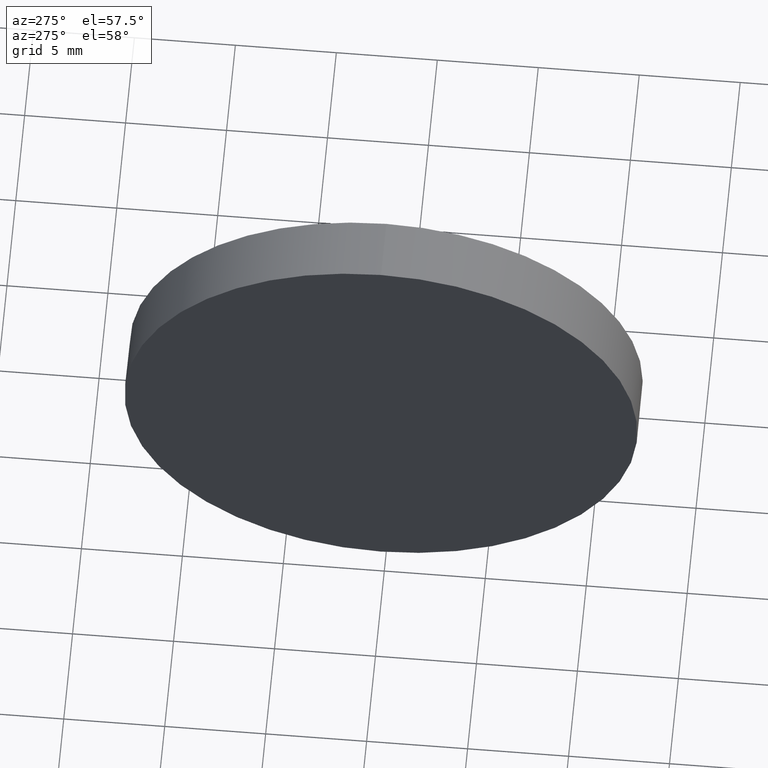
[diagram: clean part render]
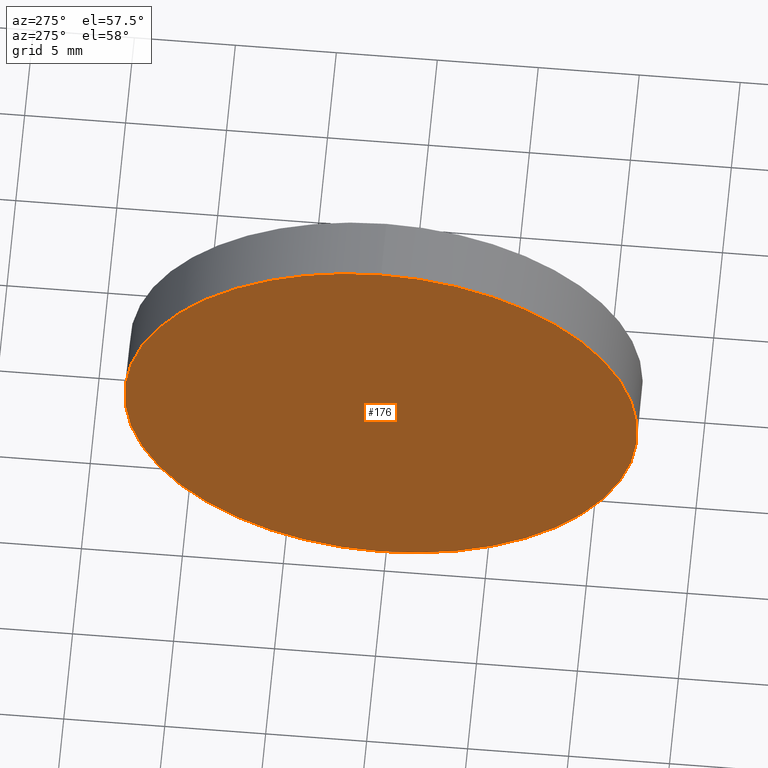
[diagram: same view with one face highlighted and labeled with its STEP entity id]
A machine part, auxiliary view. The second image highlights one B-rep face of the part: STEP entity #176.
In plain terms, the highlighted planar face has unit normal (1, 0, 0).
Its self-contained STEP definition (entity closure, byte-faithful):
#11 = CARTESIAN_POINT ( 'NONE',  ( 115.7736064308381300, 65.23355492641219700, 12.70000000000000300 ) ) ;
#18 = EDGE_CURVE ( 'NONE', #117, #150, #57, .T. ) ;
#21 = FACE_OUTER_BOUND ( 'NONE', #138, .T. ) ;
#23 = DIRECTION ( 'NONE',  ( 0.0000000000000000000, 0.0000000000000000000, 1.000000000000000000 ) ) ;
#31 = AXIS2_PLACEMENT_3D ( 'NONE', #92, #120, #36 ) ;
#36 = DIRECTION ( 'NONE',  ( 0.0000000000000000000, 0.0000000000000000000, -1.000000000000000000 ) ) ;
#37 = PLANE ( 'NONE',  #31 ) ;
#48 = DIRECTION ( 'NONE',  ( -1.000000000000000000, -0.0000000000000000000, -0.0000000000000000000 ) ) ;
#57 = CIRCLE ( 'NONE', #109, 12.70000000000000300 ) ;
#72 = CARTESIAN_POINT ( 'NONE',  ( 115.7736064308381300, 65.23355492641219700, 0.0000000000000000000 ) ) ;
#74 = DIRECTION ( 'NONE',  ( 0.0000000000000000000, 0.0000000000000000000, 1.000000000000000000 ) ) ;
#76 = DIRECTION ( 'NONE',  ( -1.000000000000000000, -0.0000000000000000000, -0.0000000000000000000 ) ) ;
#81 = CARTESIAN_POINT ( 'NONE',  ( 115.7736064308381300, 65.23355492641219700, -12.70000000000000300 ) ) ;
#92 = CARTESIAN_POINT ( 'NONE',  ( 115.7736064308381300, 65.23355492641219700, 0.0000000000000000000 ) ) ;
#109 = AXIS2_PLACEMENT_3D ( 'NONE', #72, #76, #74 ) ;
#117 = VERTEX_POINT ( 'NONE', #81 ) ;
#120 = DIRECTION ( 'NONE',  ( 1.000000000000000000, 0.0000000000000000000, 0.0000000000000000000 ) ) ;
#128 = EDGE_CURVE ( 'NONE', #150, #117, #136, .T. ) ;
#136 = CIRCLE ( 'NONE', #167, 12.70000000000000300 ) ;
#138 = EDGE_LOOP ( 'NONE', ( #166, #157 ) ) ;
#147 = CARTESIAN_POINT ( 'NONE',  ( 115.7736064308381300, 65.23355492641219700, 0.0000000000000000000 ) ) ;
#150 = VERTEX_POINT ( 'NONE', #11 ) ;
#157 = ORIENTED_EDGE ( 'NONE', *, *, #18, .T. ) ;
#166 = ORIENTED_EDGE ( 'NONE', *, *, #128, .T. ) ;
#167 = AXIS2_PLACEMENT_3D ( 'NONE', #147, #48, #23 ) ;
#176 = ADVANCED_FACE ( 'NONE', ( #21 ), #37, .F. ) ;